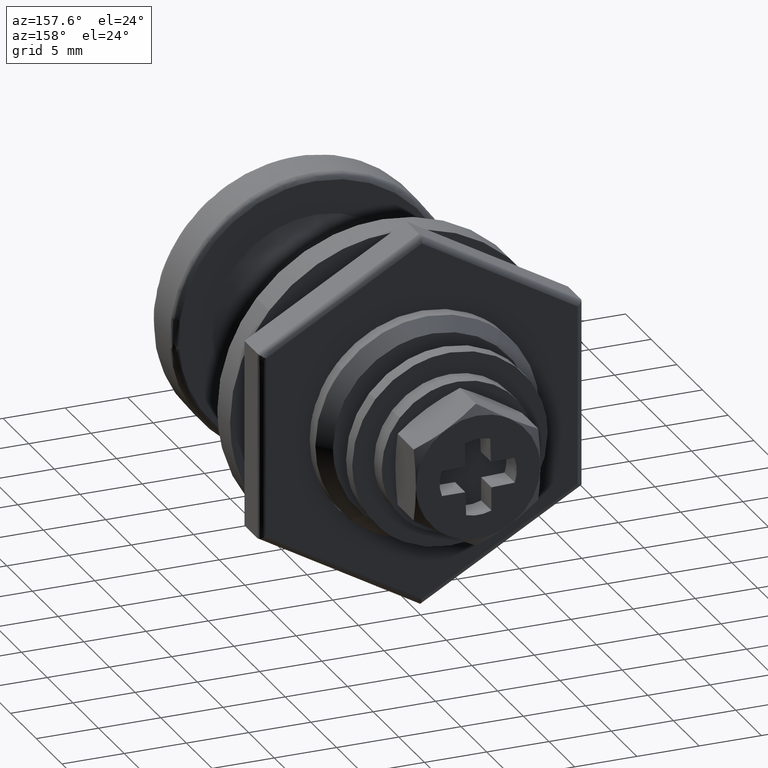
[diagram: clean part render]
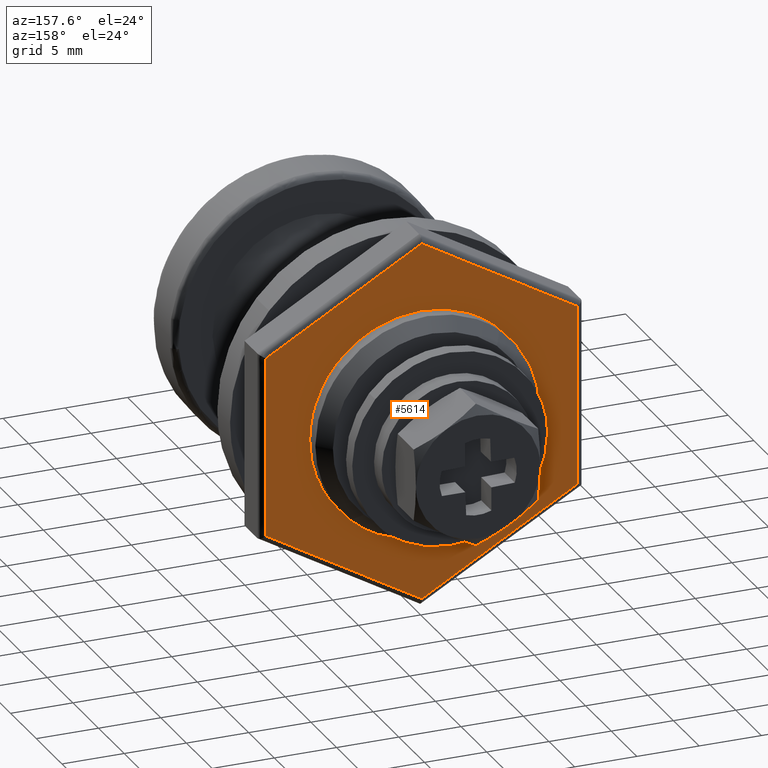
[diagram: same view with one face highlighted and labeled with its STEP entity id]
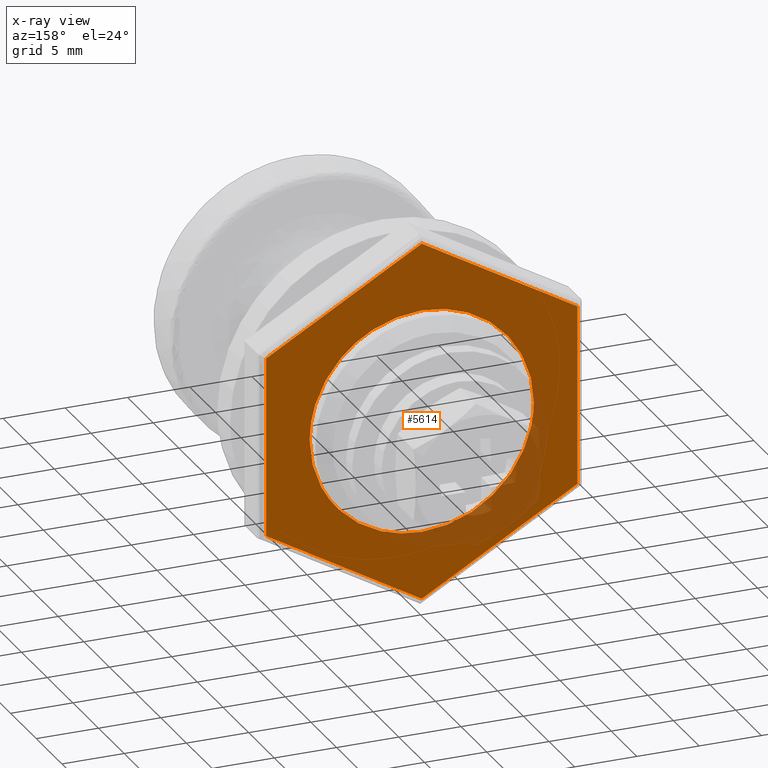
[diagram: x-ray of the same camera — body ghosted, the highlighted face saturated]
A machine part, auxiliary view. The second image highlights one B-rep face of the part: STEP entity #5614.
The next image is the same camera in x-ray: the body ghosted, the highlighted face saturated — about 13% of this face is hidden behind the body in this view.
In plain terms, the highlighted face is a freeform B-spline surface patch.
Its self-contained STEP definition (entity closure, byte-faithful):
#4725=CARTESIAN_POINT('',(5.200000000000000,0.0,9.0));
#4726=VERTEX_POINT('',#4725);
#4727=CARTESIAN_POINT('',(5.199999999999380,-6.449858659233826,6.276887825513754));
#4728=VERTEX_POINT('',#4727);
#4729=CARTESIAN_POINT('',(5.200000000000000,0.0,9.0));
#4730=CARTESIAN_POINT('',(5.199999999999949,-0.636702631464160,9.000101154489142));
#4731=CARTESIAN_POINT('',(5.199999999999825,-1.722783356567913,8.884245098002769));
#4732=CARTESIAN_POINT('',(5.199999999999709,-3.163586461390176,8.458756362520900));
#4733=CARTESIAN_POINT('',(5.199999999999569,-4.357521869953767,7.910173616663701));
#4734=CARTESIAN_POINT('',(5.199999999999498,-5.461172386951621,7.196090634025779));
#4735=CARTESIAN_POINT('',(5.199999999999382,-6.136427412405636,6.598990175601583));
#4736=CARTESIAN_POINT('',(5.199999999999380,-6.449858659233826,6.276887825513754));
#4737=B_SPLINE_CURVE_WITH_KNOTS('',3,(#4729,#4730,#4731,#4732,#4733,#4734,#4735,#4736),.UNSPECIFIED.,.F.,.U.,(4,1,1,1,1,4),(4.858123E-009,1.910085355723250,3.258386354997165,4.494316863057922,5.842612655928996,7.190907705669838),.UNSPECIFIED.);
#4738=EDGE_CURVE('',#4726,#4728,#4737,.T.);
#4815=CARTESIAN_POINT('',(5.199999999999994,-6.635496133753411,-6.080311961747340));
#4816=VERTEX_POINT('',#4815);
#4822=CARTESIAN_POINT('',(5.200000000000000,0.0,-9.0));
#4823=VERTEX_POINT('',#4822);
#4824=CARTESIAN_POINT('',(5.199999999999994,-6.635496133753411,-6.080311961747340));
#4825=CARTESIAN_POINT('',(5.199999999999999,-6.254862801420592,-6.495808601813152));
#4826=CARTESIAN_POINT('',(5.199999999999983,-5.617831198283112,-7.071625404665295));
#4827=CARTESIAN_POINT('',(5.200000000000012,-4.439915528949546,-7.864855574917836));
#4828=CARTESIAN_POINT('',(5.199999999999966,-3.280157871598143,-8.425267967226580));
#4829=CARTESIAN_POINT('',(5.200000000000059,-1.709835819854148,-8.885276499947684));
#4830=CARTESIAN_POINT('',(5.199999999999943,-0.641213948405892,-9.000115191403266));
#4831=CARTESIAN_POINT('',(5.200000000000000,0.0,-9.0));
#4832=B_SPLINE_CURVE_WITH_KNOTS('',3,(#4824,#4825,#4826,#4827,#4828,#4829,#4830,#4831),.UNSPECIFIED.,.F.,.U.,(4,1,1,1,1,4),(4.926867E-009,1.690449090069883,2.564823158513681,4.255268841145000,5.537680233855697,7.461295651393791),.UNSPECIFIED.);
#4833=EDGE_CURVE('',#4816,#4823,#4832,.T.);
#4835=CARTESIAN_POINT('',(5.200000000000000,8.999999999999982,0.000000556166047));
#4836=VERTEX_POINT('',#4835);
#4837=CARTESIAN_POINT('',(5.200000000000000,0.0,-9.0));
#4838=CARTESIAN_POINT('',(5.200000000000009,0.386560301915871,-9.000012746225664));
#4839=CARTESIAN_POINT('',(5.199999999999993,1.141274618146173,-8.951303888900833));
#4840=CARTESIAN_POINT('',(5.200000000000014,2.119203278492072,-8.763010983986929));
#4841=CARTESIAN_POINT('',(5.199999999999992,3.036773246351931,-8.487740871040662));
#4842=CARTESIAN_POINT('',(5.199999999999968,3.906684529200176,-8.130537313095742));
#4843=CARTESIAN_POINT('',(5.200000000000052,4.809776778979831,-7.629866332370700));
#4844=CARTESIAN_POINT('',(5.199999999999917,5.590162472092743,-7.073051993281276));
#4845=CARTESIAN_POINT('',(5.200000000000104,6.282255535637018,-6.464848669431230));
#4846=CARTESIAN_POINT('',(5.199999999999960,6.861243566982562,-5.845399500433279));
#4847=CARTESIAN_POINT('',(5.200000000000017,7.401050532628269,-5.144870551194703));
#4848=CARTESIAN_POINT('',(5.199999999999990,7.980099558593045,-4.224298984784233));
#4849=CARTESIAN_POINT('',(5.200000000000002,8.526644502435646,-3.011502530781359));
#4850=CARTESIAN_POINT('',(5.200000000000006,8.912798392562131,-1.527832689664697));
#4851=CARTESIAN_POINT('',(5.199999999999992,9.000037171157306,-0.515418845247429));
#4852=CARTESIAN_POINT('',(5.200000000000000,8.999999999999982,0.000000556166047));
#4853=B_SPLINE_CURVE_WITH_KNOTS('',3,(#4837,#4838,#4839,#4840,#4841,#4842,#4843,#4844,#4845,#4846,#4847,#4848,#4849,#4850,#4851,#4852),.UNSPECIFIED.,.F.,.U.,(4,1,1,1,1,1,1,1,1,1,1,1,1,4),(0.000000017196555,1.159681267554710,2.264154122351414,2.982063142553326,4.031308474502341,5.080553501070652,6.074583759365366,6.902935892631047,7.841710825769142,8.614849128477822,9.553642968019812,11.099903459915300,12.590935026590930,14.137189431730601),.UNSPECIFIED.);
#4854=EDGE_CURVE('',#4823,#4836,#4853,.T.);
#4856=CARTESIAN_POINT('',(5.200000000000000,8.999999999999982,0.000000556166047));
#4857=CARTESIAN_POINT('',(5.200000000000007,9.000029255477674,0.460194107404074));
#4858=CARTESIAN_POINT('',(5.199999999999983,8.944807020012490,1.178084772046075));
#4859=CARTESIAN_POINT('',(5.200000000000038,8.729145198710114,2.262332558748097));
#4860=CARTESIAN_POINT('',(5.199999999999917,8.436753725567522,3.195226043279849));
#4861=CARTESIAN_POINT('',(5.200000000000018,8.035309775877069,4.086051961036402));
#4862=CARTESIAN_POINT('',(5.200000000000001,7.576320337878007,4.884811026952016));
#4863=CARTESIAN_POINT('',(5.199999999999939,7.073047776475804,5.590157178516686));
#4864=CARTESIAN_POINT('',(5.200000000000048,6.294587418355951,6.476086981839345));
#4865=CARTESIAN_POINT('',(5.200000000000187,5.269769999275487,7.354625160546620));
#4866=CARTESIAN_POINT('',(5.199999999999704,3.899790482072874,8.158697337571196));
#4867=CARTESIAN_POINT('',(5.200000000000103,2.655749760401110,8.629804291619010));
#4868=CARTESIAN_POINT('',(5.200000000000016,1.343751481871833,8.928638141251234));
#4869=CARTESIAN_POINT('',(5.199999999999982,0.515420131345871,9.000041312953245));
#4870=CARTESIAN_POINT('',(5.200000000000000,0.0,9.0));
#4871=B_SPLINE_CURVE_WITH_KNOTS('',3,(#4856,#4857,#4858,#4859,#4860,#4861,#4862,#4863,#4864,#4865,#4866,#4867,#4868,#4869,#4870),.UNSPECIFIED.,.F.,.U.,(4,1,1,1,1,1,1,1,1,1,1,1,4),(0.000000017246331,1.380575492826505,2.153710289284229,3.313402816884189,4.307427955732784,5.080553275697962,6.074583490083217,6.902935586389981,8.614848746170214,10.105880246796699,11.652140670115941,12.590934468095460,14.137188804800861),.UNSPECIFIED.);
#4872=EDGE_CURVE('',#4836,#4726,#4871,.T.);
#4891=CARTESIAN_POINT('',(5.200000000000000,-8.999999999999982,-0.000000556166230));
#4892=VERTEX_POINT('',#4891);
#4893=CARTESIAN_POINT('',(5.199999999999380,-6.449858659233826,6.276887825513754));
#4894=CARTESIAN_POINT('',(5.199999999999434,-6.929386815225008,5.784364159249956));
#4895=CARTESIAN_POINT('',(5.199999999999527,-7.652231081692851,4.847237704652575));
#4896=CARTESIAN_POINT('',(5.199999999999662,-8.395411936172582,3.352011500971916));
#4897=CARTESIAN_POINT('',(5.199999999999855,-8.875745365722423,1.790794430154531));
#4898=CARTESIAN_POINT('',(5.199999999999885,-9.000114911587353,0.651222230927739));
#4899=CARTESIAN_POINT('',(5.200000000000000,-8.999999999999982,-0.000000556166230));
#4900=B_SPLINE_CURVE_WITH_KNOTS('',3,(#4893,#4894,#4895,#4896,#4897,#4898,#4899),.UNSPECIFIED.,.F.,.U.,(4,1,1,1,4),(4.427631E-009,2.062178105428173,3.527403303343107,4.992639182660619,6.946281879518395),.UNSPECIFIED.);
#4901=EDGE_CURVE('',#4728,#4892,#4900,.T.);
#4903=CARTESIAN_POINT('',(5.200000000000000,-8.999999999999982,-0.000000556166230));
#4904=CARTESIAN_POINT('',(5.199999999999998,-9.000004469319567,-0.382471107558586));
#4905=CARTESIAN_POINT('',(5.200000000000014,-8.942324434670189,-1.286505470940286));
#4906=CARTESIAN_POINT('',(5.199999999999983,-8.667553377814015,-2.548292088259918));
#4907=CARTESIAN_POINT('',(5.199999999999975,-8.188616764393945,-3.801261177331276));
#4908=CARTESIAN_POINT('',(5.200000000000038,-7.552024839187846,-4.963019012270316));
#4909=CARTESIAN_POINT('',(5.199999999999951,-6.976137885401577,-5.708624688730136));
#4910=CARTESIAN_POINT('',(5.199999999999994,-6.635496133753411,-6.080311961747340));
#4911=B_SPLINE_CURVE_WITH_KNOTS('',3,(#4903,#4904,#4905,#4906,#4907,#4908,#4909,#4910),.UNSPECIFIED.,.F.,.U.,(4,1,1,1,1,4),(4.224905E-009,1.147416924277699,2.712086031146101,3.859499775720107,5.163386788052196,6.675893224824371),.UNSPECIFIED.);
#4912=EDGE_CURVE('',#4892,#4816,#4911,.T.);
#5203=CARTESIAN_POINT('',(5.200000000000000,12.500000000000000,7.216878866903080));
#5204=VERTEX_POINT('',#5203);
#5227=CARTESIAN_POINT('',(5.200000000000000,0.000000997423450,14.433756730800299));
#5228=VERTEX_POINT('',#5227);
#5244=CARTESIAN_POINT('',(5.200000000000000,12.500000000000000,7.216878866903080));
#5245=CARTESIAN_POINT('',(5.200000000000000,0.000000997423450,14.433756730800299));
#5246=QUASI_UNIFORM_CURVE('',1,(#5244,#5245),.UNSPECIFIED.,.F.,.U.);
#5247=EDGE_CURVE('',#5204,#5228,#5246,.T.);
#5268=CARTESIAN_POINT('',(5.200000000000000,-12.500000000000000,7.216877863928080));
#5269=VERTEX_POINT('',#5268);
#5283=CARTESIAN_POINT('',(5.200000000000000,0.000000997423450,14.433756730800299));
#5284=CARTESIAN_POINT('',(5.200000000000000,-12.500000000000000,7.216877863928080));
#5285=QUASI_UNIFORM_CURVE('',1,(#5283,#5284),.UNSPECIFIED.,.F.,.U.);
#5286=EDGE_CURVE('',#5228,#5269,#5285,.T.);
#5311=CARTESIAN_POINT('',(5.200000000000000,12.500000000000000,-7.216877875030651));
#5312=VERTEX_POINT('',#5311);
#5334=CARTESIAN_POINT('',(5.200000000000000,12.500000000000000,-7.216877875030651));
#5335=CARTESIAN_POINT('',(5.200000000000000,12.500000000000000,7.216878866903080));
#5336=QUASI_UNIFORM_CURVE('',1,(#5334,#5335),.UNSPECIFIED.,.F.,.U.);
#5337=EDGE_CURVE('',#5312,#5204,#5336,.T.);
#5358=CARTESIAN_POINT('',(5.200000000000000,-12.500000000000000,-7.216877875030660));
#5359=VERTEX_POINT('',#5358);
#5373=CARTESIAN_POINT('',(5.200000000000000,-12.500000000000000,7.216877863928080));
#5374=CARTESIAN_POINT('',(5.200000000000000,-12.500000000000000,-7.216877875030660));
#5375=QUASI_UNIFORM_CURVE('',1,(#5373,#5374),.UNSPECIFIED.,.F.,.U.);
#5376=EDGE_CURVE('',#5269,#5359,#5375,.T.);
#5401=CARTESIAN_POINT('',(5.200000000000000,-3.660736E-015,-14.433756721184521));
#5402=VERTEX_POINT('',#5401);
#5424=CARTESIAN_POINT('',(5.200000000000000,-3.660736E-015,-14.433756721184521));
#5425=CARTESIAN_POINT('',(5.200000000000000,12.500000000000000,-7.216877875030651));
#5426=QUASI_UNIFORM_CURVE('',1,(#5424,#5425),.UNSPECIFIED.,.F.,.U.);
#5427=EDGE_CURVE('',#5402,#5312,#5426,.T.);
#5453=CARTESIAN_POINT('',(5.200000000000000,-12.500000000000000,-7.216877875030660));
#5454=CARTESIAN_POINT('',(5.200000000000000,-3.660736E-015,-14.433756721184521));
#5455=QUASI_UNIFORM_CURVE('',1,(#5453,#5454),.UNSPECIFIED.,.F.,.U.);
#5456=EDGE_CURVE('',#5359,#5402,#5455,.T.);
#5593=CARTESIAN_POINT('',(5.200000000000000,-13.748749951545150,15.875689242763659));
#5594=CARTESIAN_POINT('',(5.200000000000000,13.748750622097401,15.875689242763659));
#5595=CARTESIAN_POINT('',(5.199999999999999,-13.748749951545150,-15.875689749339250));
#5596=CARTESIAN_POINT('',(5.199999999999999,13.748750622097401,-15.875689749339250));
#5597=B_SPLINE_SURFACE_WITH_KNOTS('',1,1,((#5593,#5595),(#5594,#5596)),.UNSPECIFIED.,.F.,.F.,.U.,(2,2),(2,2),(0.0,27.497500573642551),(0.0,31.751378992102911),.UNSPECIFIED.);
#5598=ORIENTED_EDGE('',*,*,#5337,.T.);
#5599=ORIENTED_EDGE('',*,*,#5247,.T.);
#5600=ORIENTED_EDGE('',*,*,#5286,.T.);
#5601=ORIENTED_EDGE('',*,*,#5376,.T.);
#5602=ORIENTED_EDGE('',*,*,#5456,.T.);
#5603=ORIENTED_EDGE('',*,*,#5427,.T.);
#5604=EDGE_LOOP('',(#5598,#5599,#5600,#5601,#5602,#5603));
#5605=FACE_OUTER_BOUND('',#5604,.T.);
#5606=ORIENTED_EDGE('',*,*,#4854,.F.);
#5607=ORIENTED_EDGE('',*,*,#4833,.F.);
#5608=ORIENTED_EDGE('',*,*,#4912,.F.);
#5609=ORIENTED_EDGE('',*,*,#4901,.F.);
#5610=ORIENTED_EDGE('',*,*,#4738,.F.);
#5611=ORIENTED_EDGE('',*,*,#4872,.F.);
#5612=EDGE_LOOP('',(#5606,#5607,#5608,#5609,#5610,#5611));
#5613=FACE_BOUND('',#5612,.T.);
#5614=ADVANCED_FACE('',(#5605,#5613),#5597,.F.);